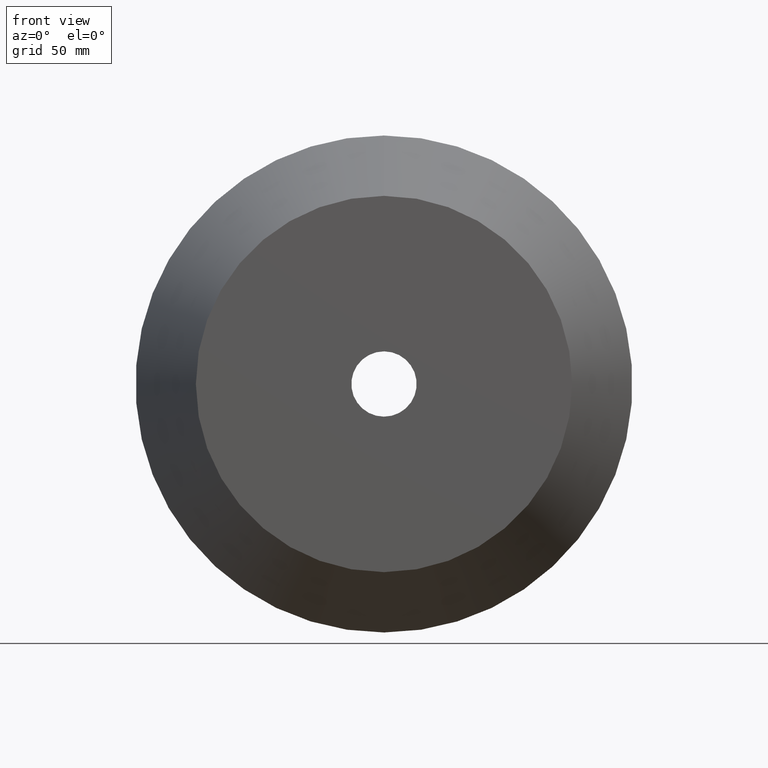
[diagram: clean part render]
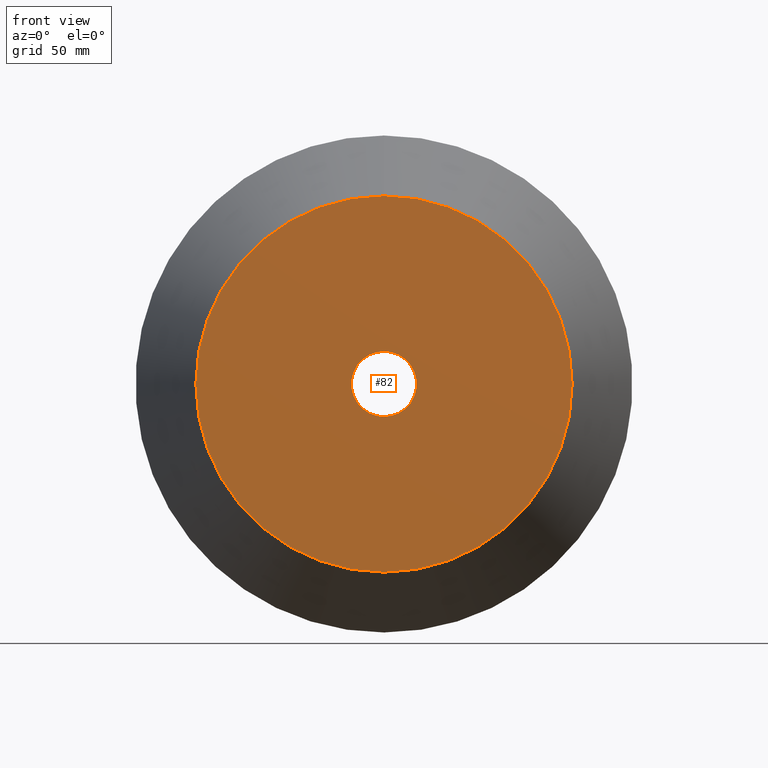
[diagram: same view with one face highlighted and labeled with its STEP entity id]
A machine part, front view. The second image highlights one B-rep face of the part: STEP entity #82.
In plain terms, the highlighted planar face has unit normal (0, 1, 0).
Its self-contained STEP definition (entity closure, byte-faithful):
#14 = CIRCLE ( 'NONE', #164, 132.5000000000000000 ) ;
#28 = AXIS2_PLACEMENT_3D ( 'NONE', #311, #240, #128 ) ;
#37 = DIRECTION ( 'NONE',  ( 0.0000000000000000000, -0.0000000000000000000, 1.000000000000000000 ) ) ;
#38 = ORIENTED_EDGE ( 'NONE', *, *, #307, .T. ) ;
#39 = AXIS2_PLACEMENT_3D ( 'NONE', #241, #283, #37 ) ;
#50 = VERTEX_POINT ( 'NONE', #115 ) ;
#56 = FACE_BOUND ( 'NONE', #237, .T. ) ;
#69 = CIRCLE ( 'NONE', #274, 23.00000000000000400 ) ;
#71 = EDGE_LOOP ( 'NONE', ( #38, #133 ) ) ;
#82 = ADVANCED_FACE ( 'NONE', ( #56, #212 ), #243, .F. ) ;
#105 = DIRECTION ( 'NONE',  ( 0.0000000000000000000, 0.0000000000000000000, -1.000000000000000000 ) ) ;
#111 = VERTEX_POINT ( 'NONE', #254 ) ;
#115 = CARTESIAN_POINT ( 'NONE',  ( 0.0000000000000000000, 1.040834085586084300E-014, -23.00000000000000400 ) ) ;
#118 = CARTESIAN_POINT ( 'NONE',  ( 0.0000000000000000000, 1.040834085586084300E-014, 0.0000000000000000000 ) ) ;
#128 = DIRECTION ( 'NONE',  ( 0.0000000000000000000, 0.0000000000000000000, -1.000000000000000000 ) ) ;
#133 = ORIENTED_EDGE ( 'NONE', *, *, #170, .T. ) ;
#138 = DIRECTION ( 'NONE',  ( -0.0000000000000000000, -1.000000000000000000, -0.0000000000000000000 ) ) ;
#145 = ORIENTED_EDGE ( 'NONE', *, *, #205, .F. ) ;
#154 = DIRECTION ( 'NONE',  ( -0.0000000000000000000, -1.000000000000000000, -0.0000000000000000000 ) ) ;
#159 = AXIS2_PLACEMENT_3D ( 'NONE', #317, #154, #192 ) ;
#164 = AXIS2_PLACEMENT_3D ( 'NONE', #290, #138, #105 ) ;
#166 = DIRECTION ( 'NONE',  ( 0.0000000000000000000, 0.0000000000000000000, -1.000000000000000000 ) ) ;
#170 = EDGE_CURVE ( 'NONE', #318, #312, #14, .T. ) ;
#182 = EDGE_CURVE ( 'NONE', #50, #111, #69, .T. ) ;
#185 = CIRCLE ( 'NONE', #159, 23.00000000000000400 ) ;
#192 = DIRECTION ( 'NONE',  ( 0.0000000000000000000, 0.0000000000000000000, -1.000000000000000000 ) ) ;
#201 = CIRCLE ( 'NONE', #28, 132.5000000000000000 ) ;
#205 = EDGE_CURVE ( 'NONE', #111, #50, #185, .T. ) ;
#206 = ORIENTED_EDGE ( 'NONE', *, *, #182, .F. ) ;
#212 = FACE_OUTER_BOUND ( 'NONE', #71, .T. ) ;
#237 = EDGE_LOOP ( 'NONE', ( #206, #145 ) ) ;
#240 = DIRECTION ( 'NONE',  ( -0.0000000000000000000, -1.000000000000000000, -0.0000000000000000000 ) ) ;
#241 = CARTESIAN_POINT ( 'NONE',  ( -23.00000000000000400, 3.469446951953614200E-015, 0.0000000000000000000 ) ) ;
#243 = PLANE ( 'NONE',  #39 ) ;
#254 = CARTESIAN_POINT ( 'NONE',  ( 2.816687638038913100E-015, 1.040834085586084300E-014, 23.00000000000000400 ) ) ;
#271 = CARTESIAN_POINT ( 'NONE',  ( 0.0000000000000000000, -3.469446951953614200E-015, 132.5000000000000000 ) ) ;
#274 = AXIS2_PLACEMENT_3D ( 'NONE', #118, #309, #166 ) ;
#276 = CARTESIAN_POINT ( 'NONE',  ( 1.882894453689055400E-014, -3.469446951953614200E-015, -132.5000000000000000 ) ) ;
#283 = DIRECTION ( 'NONE',  ( 0.0000000000000000000, 1.000000000000000000, 0.0000000000000000000 ) ) ;
#290 = CARTESIAN_POINT ( 'NONE',  ( 0.0000000000000000000, -3.469446951953614200E-015, 0.0000000000000000000 ) ) ;
#307 = EDGE_CURVE ( 'NONE', #312, #318, #201, .T. ) ;
#309 = DIRECTION ( 'NONE',  ( -0.0000000000000000000, -1.000000000000000000, -0.0000000000000000000 ) ) ;
#311 = CARTESIAN_POINT ( 'NONE',  ( 0.0000000000000000000, -3.469446951953614200E-015, 0.0000000000000000000 ) ) ;
#312 = VERTEX_POINT ( 'NONE', #271 ) ;
#317 = CARTESIAN_POINT ( 'NONE',  ( 0.0000000000000000000, 1.040834085586084300E-014, 0.0000000000000000000 ) ) ;
#318 = VERTEX_POINT ( 'NONE', #276 ) ;